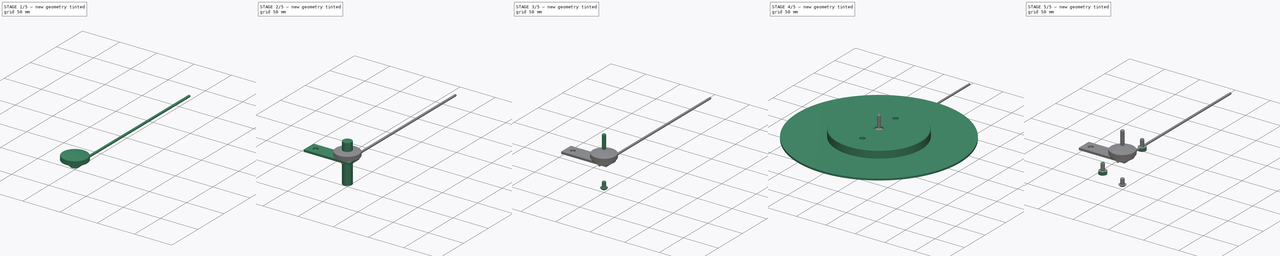
[diagram: build sequence overview — one tinted view per stage of 5, left to right]
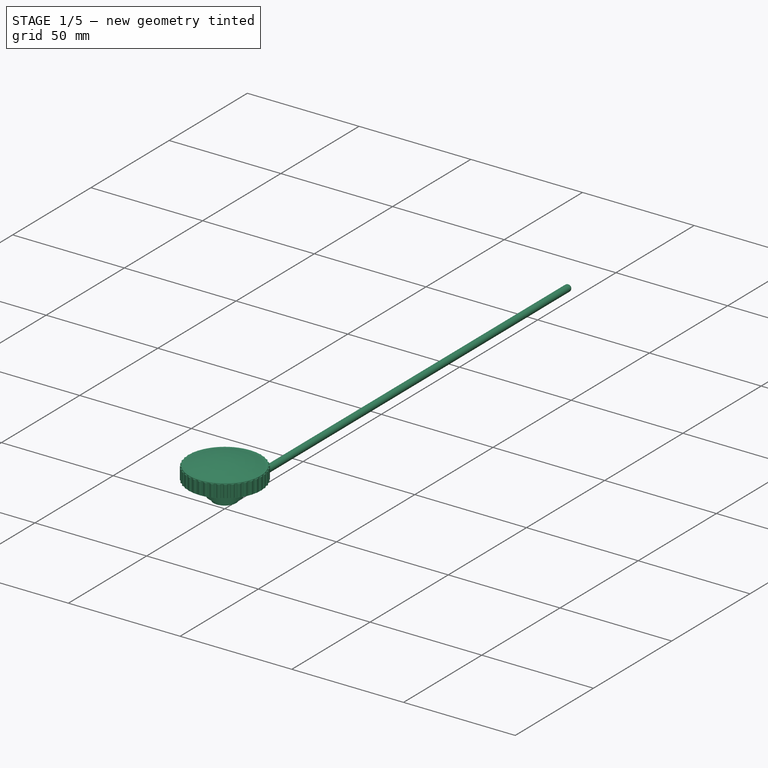
[diagram: stage 1 of 5 — iso view after this stage's code; geometry added in this stage tinted green]
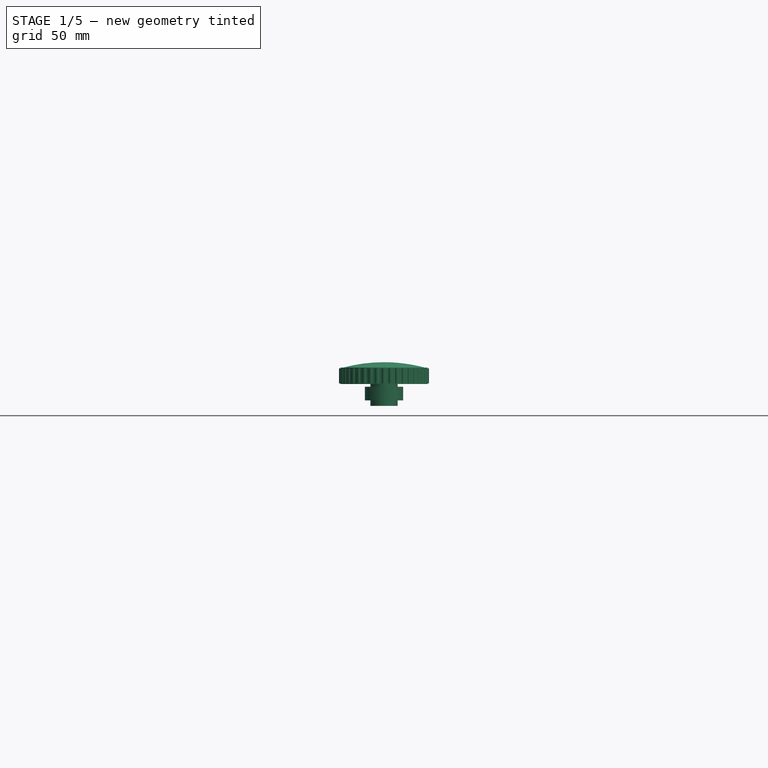
[diagram: stage 1 of 5 — front view after this stage's code; geometry added in this stage tinted green]
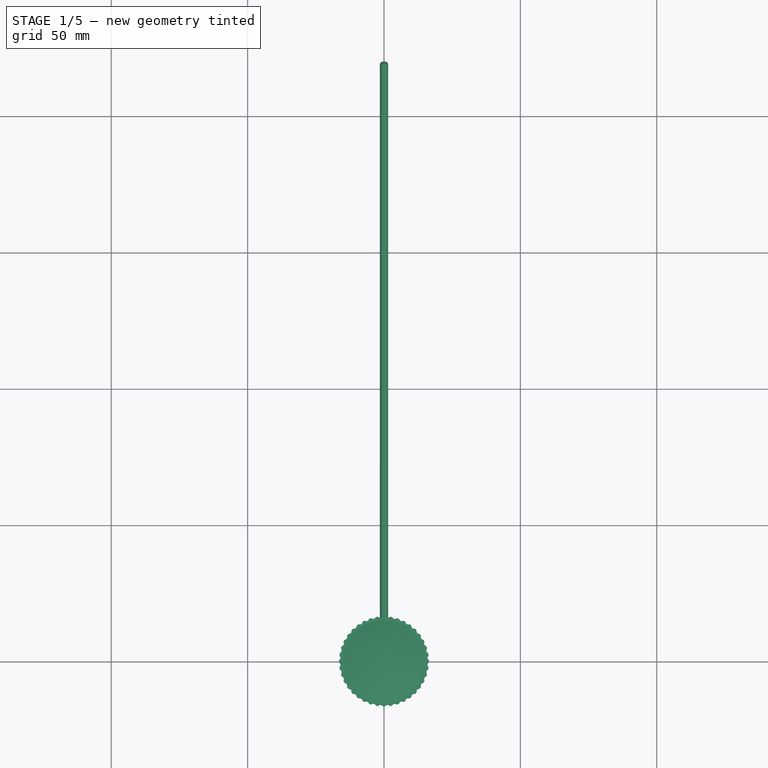
[diagram: stage 1 of 5 — top view after this stage's code; geometry added in this stage tinted green]
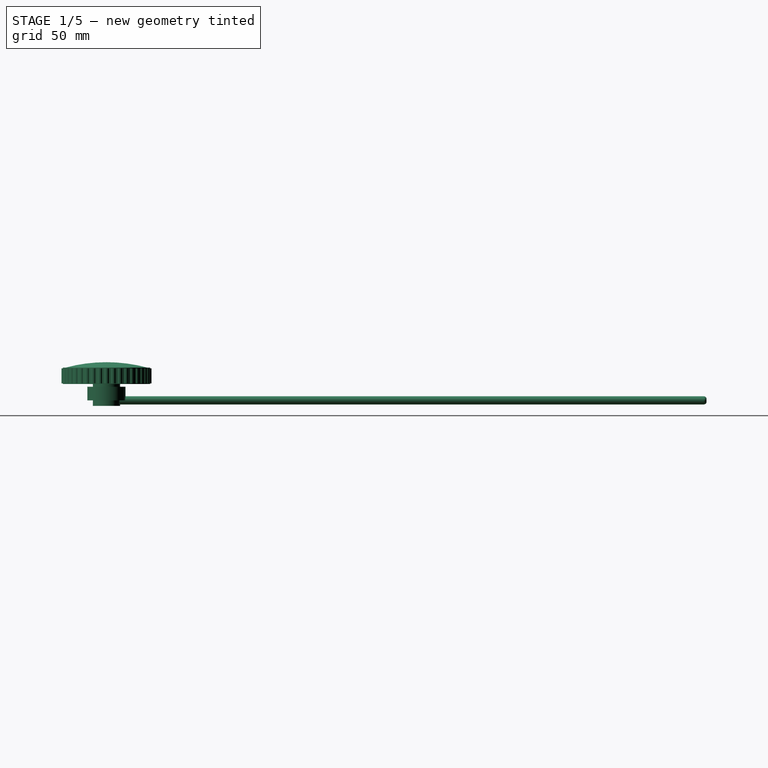
[diagram: stage 1 of 5 — right view after this stage's code; geometry added in this stage tinted green]
FCSTD DOCUMENT  (FreeCAD 0.21R33771 (Git))
Label: FilmLooperv3
License: All rights reserved
objects: Sketcher::SketchObject×15, PartDesign::Body×9, Part::FeaturePython×8, PartDesign::Pad×7, PartDesign::Pocket×4, App::Part×3, PartDesign::AdditiveCylinder×2, PartDesign::Hole×2, PartDesign::Chamfer×1, Part::Revolution×1, PartDesign::Fillet×1, PartDesign::Revolution×1, PartDesign::PolarPattern×1
note: 70 computed .brp shape members not serialized (recipe doc carries the construction recipe); baked Part::Feature solids carry a one-line shape summary decoded from their .brp

FEATURE [PartDesign::Body] Body005  label="RetainingWasher"
  Group = -> [Sketch010,Pad004]
  Origin = -> Origin007
  Placement = pos=(0,0,25.25) rot=(0,0,1;0rad)
  Tip = -> Pad004
FEATURE [Sketcher::SketchObject] Sketch011
  FullyConstrained = true
  MapMode = 5
  sketch-geometry (2):
    g0: Circle CenterX=0 CenterY=0 CenterZ=0 NormalX=0 NormalY=0 NormalZ=1 AngleXU=0 Radius=2.8
    g1: Circle CenterX=0 CenterY=0 CenterZ=0 NormalX=0 NormalY=0 NormalZ=1 AngleXU=0 Radius=7
  constraints (4):
    c: Radius(g0) = 2.8
    c: Coincident(g0,g-1)
    c: Radius(g1) = 7
    c: Coincident(g1,g0)
FEATURE [PartDesign::Pad] Pad005
  Direction = (0,0,1)
  Length = 5
  Length2 = 10
  Profile = -> Sketch011
  ReferenceAxis = -> Sketch011 [N_Axis]
  Type = 0
FEATURE [PartDesign::Body] Body006  label="RadiusArmClamp"
  Group = -> [Sketch011,Pad005,Sketch012,Pocket003]
  Origin = -> Origin008
  Placement = pos=(0,0,28) rot=(0,0,1;0rad)
  Tip = -> Pocket003
FEATURE [Sketcher::SketchObject] Sketch013
  FullyConstrained = true
  MapMode = 5
  Placement = pos=(0,0,0) rot=(1,0,0;1.5708rad)
  sketch-geometry (1):
    g0: Circle CenterX=0 CenterY=0 CenterZ=0 NormalX=0 NormalY=0 NormalZ=1 AngleXU=0 Radius=1.5
  constraints (2):
    c: Radius(g0) = 1.5
    c: Coincident(g0,g-1)
FEATURE [PartDesign::Pad] Pad006
  Direction = (0,-1,2e-16)
  Length = 220
  Length2 = 10
  Placement = pos=(0,0,0) rot=(1,0,0;1.5708rad)
  Profile = -> Sketch013
  ReferenceAxis = -> Sketch013 [N_Axis]
  Reversed = true
  Type = 0
FEATURE [PartDesign::Fillet] Fillet
  Base = -> Pad006 [Edge3,Edge2]
  BaseFeature = -> Pad006
  Placement = pos=(0,0,0) rot=(1,0,0;1.5708rad)
  Radius = 1
  SupportTransform = false
  UseAllEdges = false
FEATURE [PartDesign::Body] Body007  label="RadiusArm"
  Group = -> [Sketch013,Pad006,Fillet]
  Origin = -> Origin009
  Placement = pos=(-4.5,-79,28.75) rot=(0,0,1;0rad)
  Tip = -> Fillet
FEATURE [Sketcher::SketchObject] Sketch014
  FullyConstrained = true
  MapMode = 5
  Placement = pos=(0,0,0) rot=(1,0,0;1.5708rad)
  sketch-geometry (9):
    g0: LineSegment StartX=3.5e-15 StartY=3 StartZ=0 EndX=1.5 EndY=3 EndZ=0
    g1: LineSegment StartX=1.5 StartY=3 StartZ=0 EndX=1.5 EndY=-2 EndZ=0
    g2: LineSegment StartX=1.5 StartY=-2 StartZ=0 EndX=5 EndY=-2 EndZ=0
    g3: LineSegment StartX=5 StartY=-2 StartZ=0 EndX=5 EndY=6 EndZ=0
    g4: LineSegment StartX=5 StartY=6 StartZ=0 EndX=16 EndY=6 EndZ=0
    g5: LineSegment StartX=16 StartY=6 StartZ=0 EndX=16 EndY=12 EndZ=0
    g6: LineSegment StartX=16 StartY=12 StartZ=0 EndX=15 EndY=12 EndZ=0
    g7: ArcOfCircle CenterX=0 CenterY=-43.25 CenterZ=0 NormalX=0 NormalY=0 NormalZ=1 AngleXU=0 Radius=57.25 StartAngle=1.30569 EndAngle=1.5708
    g8: LineSegment StartX=3.5e-15 StartY=14 StartZ=0 EndX=3.5e-15 EndY=3 EndZ=0
  constraints (28):
    c: PointOnObject(g0,g-2)
    c: Coincident(g0,g1)
    c: Vertical(g1)
    c: Coincident(g1,g2)
    c: Horizontal(g2)
    c: Coincident(g2,g3)
    c: Vertical(g3)
    c: Coincident(g3,g4)
    c: Horizontal(g4)
    c: Coincident(g4,g5)
    c: Vertical(g5)
    c: Coincident(g5,g6)
    c: Horizontal(g6)
    c: Coincident(g7,g8)
    c: Coincident(g8,g0)
    c: Vertical(g8)
    c: PointOnObject(g7,g-2)
    c: Coincident(g7,g6)
    c: DistanceX(g2) = 5
    c: DistanceY(g2) = -2
    c: DistanceY(g3,g3) = 8
    c: DistanceX(g4) = 16
    c: DistanceY(g5,g5) = 6
    c: DistanceX(g6,g6) = 1
    c: Horizontal(g0)
    c: DistanceX(g0) = 1.5
    c: DistanceY(g0) = 3
    c: DistanceY(g7) = 14
FEATURE [PartDesign::Revolution] Revolution
  Angle = 360
  Axis = (0,2e-16,1)
  Base = (0,0,0)
  Placement = pos=(0,0,0) rot=(1,0,0;1.5708rad)
  Profile = -> Sketch014
  ReferenceAxis = -> Sketch014 [V_Axis]
  Reversed = true
FEATURE [PartDesign::AdditiveCylinder] Cylinder001
  Angle = 360
  AttacherType = Attacher::AttachEngine3D
  AttachmentOffset = pos=(15.5,0,6.25) rot=(0,0,1;0rad)
  BaseFeature = -> Revolution
  FirstAngle = 0
  Height = 5.5
  MapMode = 5
  Placement = pos=(15.5,0,6.25) rot=(0,0,1;0rad)
  Radius = 1
  SecondAngle = 0
FEATURE [PartDesign::PolarPattern] PolarPattern
  Angle = 360
  Axis = -> Z_Axis010
  BaseFeature = -> Cylinder001
  Occurrences = 40
  Originals = -> [Cylinder001]
  Placement = pos=(15.5,0,6.25) rot=(0,0,1;0rad)
FEATURE [PartDesign::Body] Body008  label="Knob"
  Group = -> [Sketch014,Revolution,Cylinder001,PolarPattern]
  Origin = -> Origin010
  Placement = pos=(0,0,35) rot=(0,0,1;0rad)
  Tip = -> PolarPattern
FEATURE [App::Part] Part001  label="Components"
  Group = -> [Body,Body001,Sketch004,Revolve,Body002,Body003,Body005,Body006,Body007,Body008]
  Origin = -> Origin003
FEATURE [App::Part] Part002  label="FilmLooper"
  Group = -> [Part001,Part]
  Origin = -> Origin011
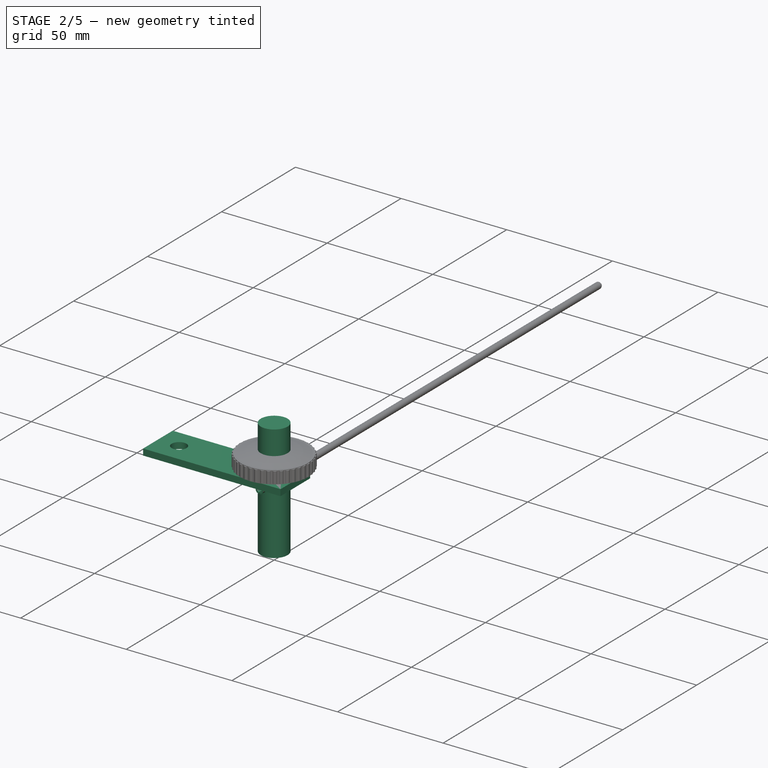
[diagram: stage 2 of 5 — iso view after this stage's code; geometry added in this stage tinted green]
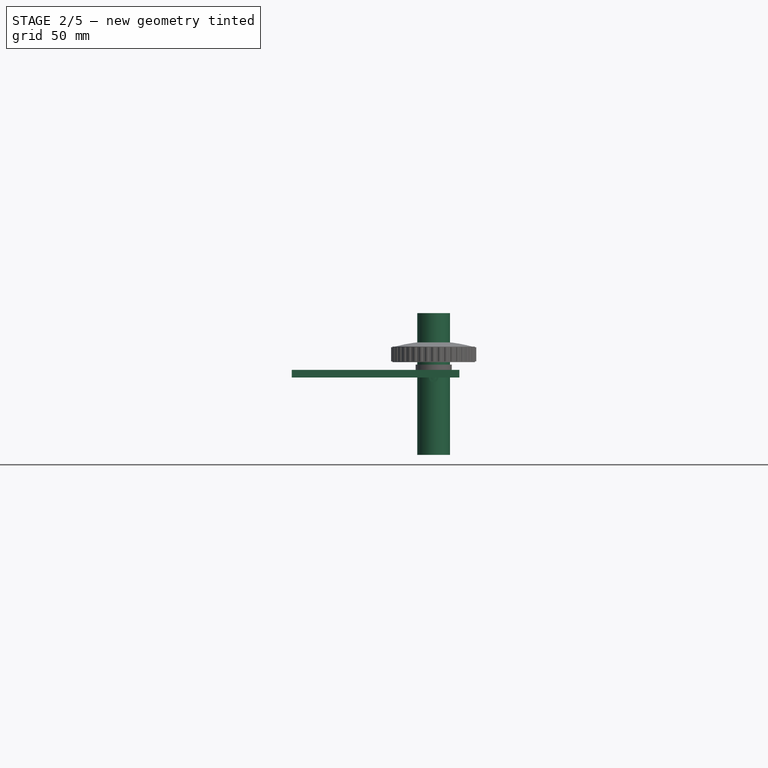
[diagram: stage 2 of 5 — front view after this stage's code; geometry added in this stage tinted green]
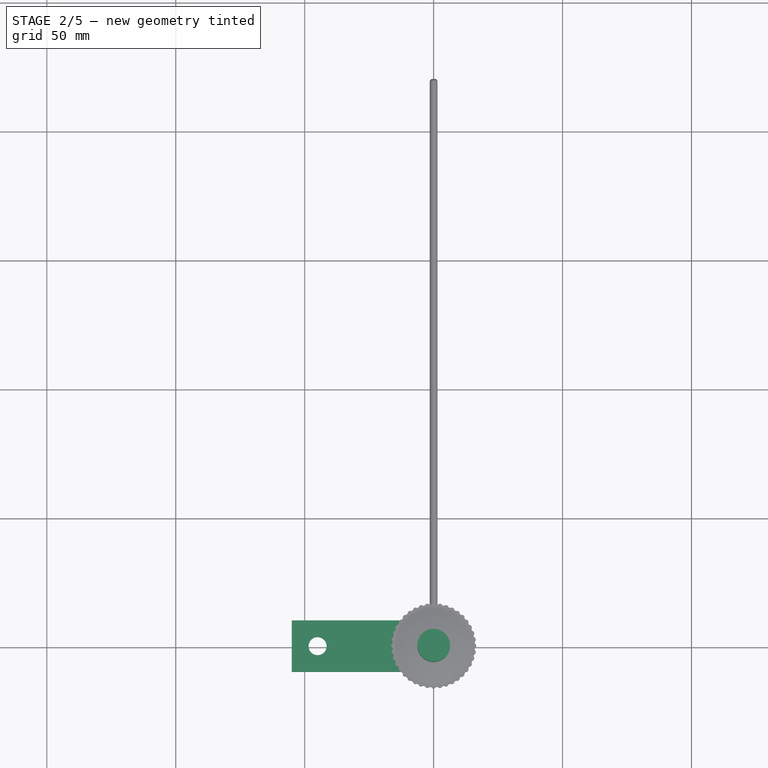
[diagram: stage 2 of 5 — top view after this stage's code; geometry added in this stage tinted green]
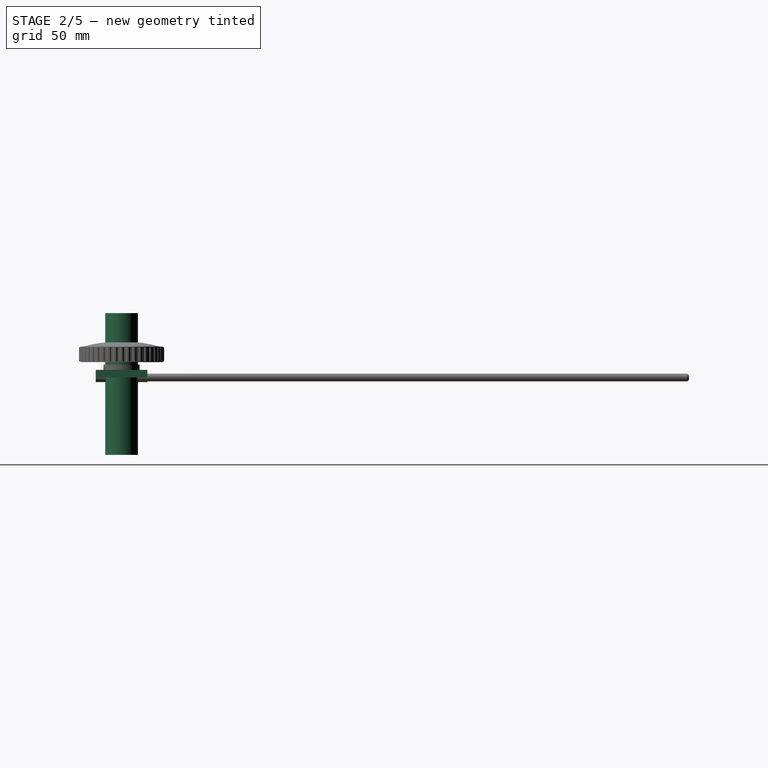
[diagram: stage 2 of 5 — right view after this stage's code; geometry added in this stage tinted green]
FEATURE [PartDesign::AdditiveCylinder] Cylinder
  Angle = 360
  AttacherType = Attacher::AttachEngine3D
  AttachmentOffset = pos=(0,0,-30) rot=(0,0,1;0rad)
  FirstAngle = 0
  Height = 55
  MapMode = 5
  Placement = pos=(0,0,-30) rot=(0,0,1;0rad)
  Radius = 6.35
  SecondAngle = 0
FEATURE [PartDesign::Body] Body002  label="CentreShaft"
  Group = -> [Cylinder,Sketch005,Hole,Sketch006,Hole001,Sketch007,Pocket002]
  Origin = -> Origin004
  Tip = -> Pocket002
FEATURE [Sketcher::SketchObject] Sketch008
  FullyConstrained = true
  MapMode = 5
  sketch-geometry (6):
    g0: LineSegment StartX=-55 StartY=10 StartZ=0 EndX=-55 EndY=-10 EndZ=0
    g1: LineSegment StartX=-55 StartY=-10 StartZ=0 EndX=10 EndY=-10 EndZ=0
    g2: LineSegment StartX=10 StartY=-10 StartZ=0 EndX=10 EndY=10 EndZ=0
    g3: LineSegment StartX=10 StartY=10 StartZ=0 EndX=-55 EndY=10 EndZ=0
    g4: Circle CenterX=0 CenterY=0 CenterZ=0 NormalX=0 NormalY=0 NormalZ=1 AngleXU=0 Radius=3.5
    g5: Circle CenterX=-45 CenterY=0 CenterZ=0 NormalX=0 NormalY=0 NormalZ=1 AngleXU=0 Radius=3.5
  constraints (16):
    c: Coincident(g0,g1)
    c: Coincident(g1,g2)
    c: Coincident(g2,g3)
    c: Coincident(g3,g0)
    c: Vertical(g0)
    c: Horizontal(g1)
    c: Horizontal(g3)
    c: DistanceX(g3,g3) = 65
    c: DistanceY(g2,g2) = 20
    c: Radius(g4) = 3.5
    c: Coincident(g4,g-1)
    c: Radius(g5) = 3.5
    c: PointOnObject(g5,g-1)
    c: DistanceX(g5,g4) = 45
    c: Symmetric(g2,g1,g-1)
    c: DistanceX(g0) = -55
FEATURE [PartDesign::Pad] Pad002
  Direction = (0,0,1)
  Length = 3
  Length2 = 10
  Profile = -> Sketch008
  ReferenceAxis = -> Sketch008 [N_Axis]
  Type = 0
FEATURE [PartDesign::Body] Body003  label="Standoff"
  Group = -> [Sketch008,Pad002]
  Origin = -> Origin005
  Placement = pos=(0,0,-33) rot=(0,0,1;0rad)
  Tip = -> Pad002
FEATURE [Sketcher::SketchObject] Sketch009
  FullyConstrained = true
  MapMode = 5
  Placement = pos=(0,0,0) rot=(1,0,0;1.5708rad)
  sketch-geometry (4):
    g0: ArcOfCircle CenterX=0 CenterY=0 CenterZ=0 NormalX=0 NormalY=0 NormalZ=1 AngleXU=0 Radius=1.8 StartAngle=4.8314 EndAngle=10.8766
    g1: ArcOfCircle CenterX=0 CenterY=0 CenterZ=0 NormalX=0 NormalY=0 NormalZ=1 AngleXU=0 Radius=1.1 StartAngle=4.90791 EndAngle=10.8001
    g2: LineSegment StartX=-0.213708 StartY=-1.07904 StartZ=0 EndX=-0.213708 EndY=-1.78727 EndZ=0
    g3: LineSegment StartX=0.213708 StartY=-1.78727 StartZ=0 EndX=0.213708 EndY=-1.07904 EndZ=0
  constraints (12):
    c: Radius(g0) = 1.8
    c: Coincident(g0,g-1)
    c: Radius(g1) = 1.1
    c: Coincident(g1,g0)
    c: Vertical(g2)
    c: Vertical(g3)
    c: Coincident(g1,g2)
    c: Coincident(g0,g2)
    c: Coincident(g0,g3)
    c: Coincident(g3,g1)
    c: Horizontal(g1,g1)
    c: Equal(g3,g2)
FEATURE [PartDesign::Pad] Pad003
  Direction = (0,-1,2e-16)
  Length = 20
  Length2 = 10
  Midplane = true
  Placement = pos=(0,0,0) rot=(1,0,0;1.5708rad)
  Profile = -> Sketch009
  ReferenceAxis = -> Sketch009 [N_Axis]
  Type = 0
FEATURE [PartDesign::Body] Body004  label="SpringPin"
  Group = -> [Sketch009,Pad003]
  Origin = -> Origin006
  Placement = pos=(0,0,-3.25) rot=(0,0,1;0rad)
  Tip = -> Pad003
FEATURE [App::Part] Part  label="Fasteners"
  Group = -> [Screw,Screw001,Screw002,Screw003,Nut,Nut001,Screw004,ThreadedRod,Body004]
  Origin = -> Origin002
FEATURE [Sketcher::SketchObject] Sketch010
  FullyConstrained = true
  MapMode = 5
  sketch-geometry (2):
    g0: Circle CenterX=0 CenterY=0 CenterZ=0 NormalX=0 NormalY=0 NormalZ=1 AngleXU=0 Radius=2.8
    g1: Circle CenterX=0 CenterY=0 CenterZ=0 NormalX=0 NormalY=0 NormalZ=1 AngleXU=0 Radius=7
  constraints (4):
    c: Radius(g0) = 2.8
    c: Coincident(g0,g-1)
    c: Radius(g1) = 7
    c: Coincident(g1,g0)
FEATURE [PartDesign::Pad] Pad004
  Direction = (0,0,1)
  Length = 2
  Length2 = 10
  Profile = -> Sketch010
  ReferenceAxis = -> Sketch010 [N_Axis]
  Type = 0
FEATURE [Sketcher::SketchObject] Sketch012
  FullyConstrained = false
  MapMode = 5
  Placement = pos=(0,0,0) rot=(1,0,0;1.5708rad)
  sketch-geometry (1):
    g0: Circle CenterX=-4.60305 CenterY=0 CenterZ=0 NormalX=0 NormalY=0 NormalZ=1 AngleXU=0 Radius=1.7
  constraints (2):
    c: Radius(g0) = 1.7
    c: PointOnObject(g0,g-1)
FEATURE [PartDesign::Pocket] Pocket003
  BaseFeature = -> Pad005
  Direction = (0,1,-2e-16)
  Length = 25
  Length2 = 5
  Midplane = true
  Profile = -> Sketch012
  ReferenceAxis = -> Sketch012 [N_Axis]
  Type = 0
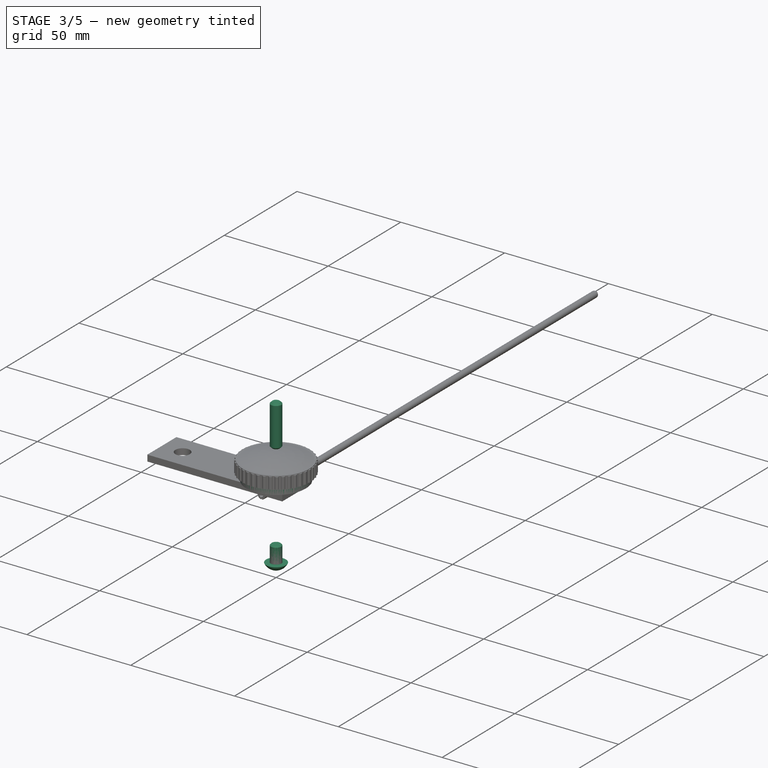
[diagram: stage 3 of 5 — iso view after this stage's code; geometry added in this stage tinted green]
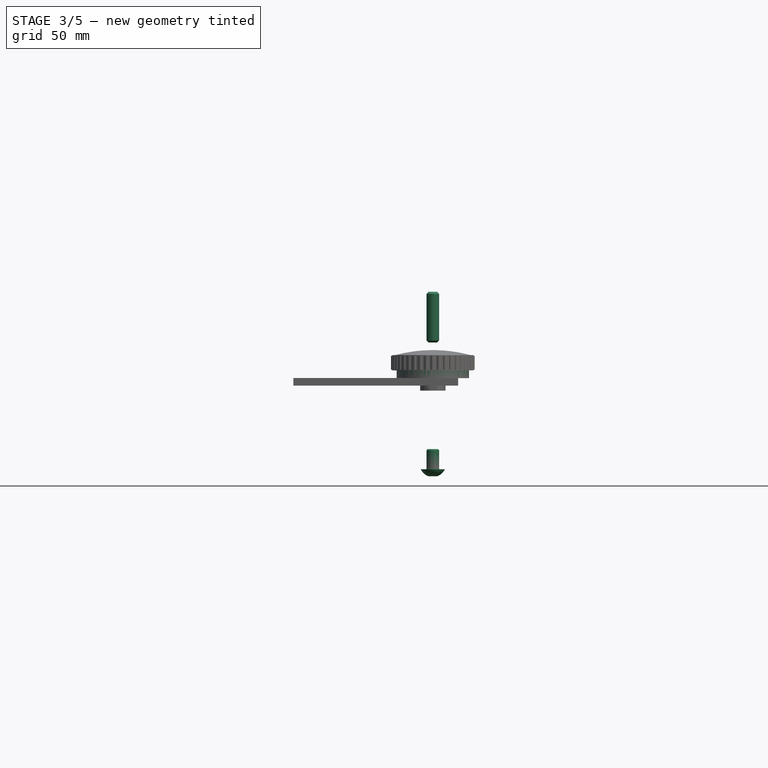
[diagram: stage 3 of 5 — front view after this stage's code; geometry added in this stage tinted green]
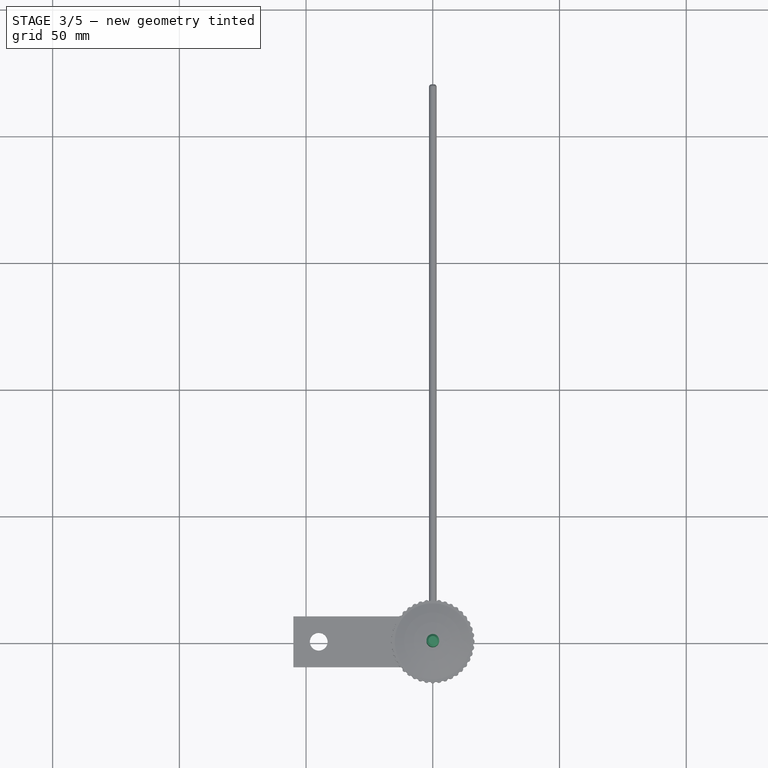
[diagram: stage 3 of 5 — top view after this stage's code; geometry added in this stage tinted green]
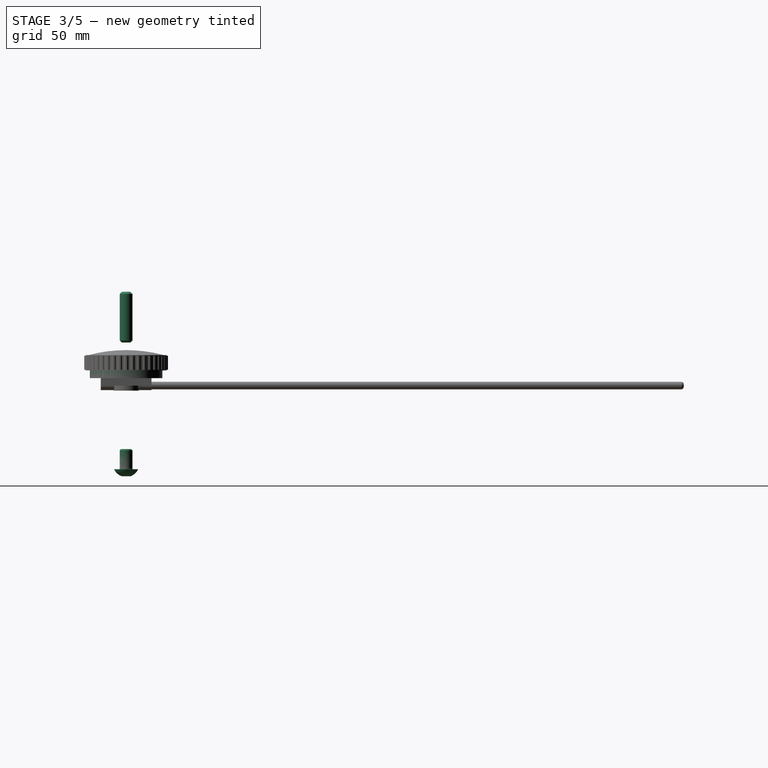
[diagram: stage 3 of 5 — right view after this stage's code; geometry added in this stage tinted green]
FEATURE [Sketcher::SketchObject] Sketch004
  FullyConstrained = true
  Placement = pos=(0,0,0) rot=(1,0,0;1.5708rad)
  sketch-geometry (12):
    g0: LineSegment StartX=-14.2875 StartY=4.03225 StartZ=0 EndX=-14.2875 EndY=-4.03225 EndZ=0
    g1: LineSegment StartX=-14.2875 StartY=-4.03225 StartZ=0 EndX=-11.7875 EndY=-4.03225 EndZ=0
    g2: LineSegment StartX=-11.7875 StartY=-4.03225 StartZ=0 EndX=-11.7875 EndY=-3.23225 EndZ=0
    g3: LineSegment StartX=-11.7875 StartY=-3.23225 StartZ=0 EndX=-8.85 EndY=-3.23225 EndZ=0
    g4: LineSegment StartX=-8.85 StartY=-3.23225 StartZ=0 EndX=-8.85 EndY=-4.03225 EndZ=0
    g5: LineSegment StartX=-8.85 StartY=-4.03225 StartZ=0 EndX=-6.35 EndY=-4.03225 EndZ=0
    g6: LineSegment StartX=-6.35 StartY=-4.03225 StartZ=0 EndX=-6.35 EndY=4.03225 EndZ=0
    g7: LineSegment StartX=-6.35 StartY=4.03225 StartZ=0 EndX=-8.85 EndY=4.03225 EndZ=0
    g8: LineSegment StartX=-8.85 StartY=4.03225 StartZ=0 EndX=-8.85 EndY=3.23225 EndZ=0
    g9: LineSegment StartX=-8.85 StartY=3.23225 StartZ=0 EndX=-11.7875 EndY=3.23225 EndZ=0
    g10: LineSegment StartX=-11.7875 StartY=3.23225 StartZ=0 EndX=-11.7875 EndY=4.03225 EndZ=0
    g11: LineSegment StartX=-11.7875 StartY=4.03225 StartZ=0 EndX=-14.2875 EndY=4.03225 EndZ=0
  constraints (34):
    c: Vertical(g0)
    c: Coincident(g0,g1)
    c: Horizontal(g1)
    c: Coincident(g1,g2)
    c: Coincident(g2,g3)
    c: Horizontal(g3)
    c: Coincident(g3,g4)
    c: Coincident(g4,g5)
    c: Horizontal(g5)
    c: Coincident(g5,g6)
    c: Coincident(g6,g7)
    c: Horizontal(g7)
    c: Coincident(g7,g8)
    c: Coincident(g8,g9)
    c: Horizontal(g9)
    c: Coincident(g9,g10)
    c: Coincident(g10,g11)
    c: Coincident(g11,g0)
    c: Horizontal(g11)
    c: Horizontal(g4,g1)
    c: Symmetric(g5,g6,g-1)
    c: Horizontal(g0,g7)
    c: Vertical(g4)
    c: Vertical(g8)
    c: Symmetric(g3,g8,g-1)
    c: Vertical(g10)
    c: Vertical(g2)
    c: Equal(g11,g7)
    c: DistanceX(g6,g-1) = 6.35
    c: DistanceX(g0,g-1) = 14.2875
    c: Equal(g1,g5)
    c: DistanceX(g7,g7) = 2.5
    c: DistanceY(g8,g8) = 0.8
    c: DistanceY(g6,g6) = 8.0645
FEATURE [Part::Revolution] Revolve  label="R8RS Bearing"
  Angle = 360
  Axis = (0,0,1)
  Base = (0,0,0)
  FaceMakerClass = Part::FaceMakerBullseye
  Placement = pos=(0,0,7) rot=(0,0,1;0rad)
  Solid = true
  Source = -> Sketch004
  Symmetric = false
FEATURE [Sketcher::SketchObject] Sketch005
  FullyConstrained = false
  MapMode = 5
  Placement = pos=(0,0,-30) rot=(1,0,0;3.14159rad)
  sketch-geometry (1):
    g0: Circle CenterX=0 CenterY=0 CenterZ=0 NormalX=0 NormalY=0 NormalZ=1 AngleXU=0 Radius=2.9367
  constraints (1):
    c: Coincident(g0,g-1)
FEATURE [PartDesign::Hole] Hole
  BaseFeature = -> Cylinder
  CustomThreadClearance = 0
  Depth = 15
  DepthType = 0
  Diameter = 4.2
  DrillForDepth = false
  DrillPoint = 1
  DrillPointAngle = 118
  HoleCutCountersinkAngle = 90
  HoleCutCustomValues = false
  HoleCutDepth = 0
  HoleCutDiameter = 6.1
  HoleCutType = 0
  ModelThread = false
  Placement = pos=(0,0,-30) rot=(0,0,1;0rad)
  Profile = -> Sketch005
  Tapered = false
  TaperedAngle = 90
  ThreadClass = 0
  ThreadDepth = 15
  ThreadDepthType = 0
  ThreadDirection = 0
  ThreadFit = 0
  ThreadSize = 13
  ThreadType = 1
  Threaded = true
  UseCustomThreadClearance = false
FEATURE [Sketcher::SketchObject] Sketch006
  FullyConstrained = false
  MapMode = 5
  Placement = pos=(0,0,25) rot=(0,0,1;0rad)
  sketch-geometry (1):
    g0: Circle CenterX=0 CenterY=0 CenterZ=0 NormalX=0 NormalY=0 NormalZ=1 AngleXU=0 Radius=5.23811
  constraints (1):
    c: Coincident(g0,g-1)
FEATURE [PartDesign::Hole] Hole001
  BaseFeature = -> Hole
  CustomThreadClearance = 0
  Depth = 15
  DepthType = 0
  Diameter = 5.5
  DrillForDepth = false
  DrillPoint = 1
  DrillPointAngle = 118
  HoleCutCountersinkAngle = 90
  HoleCutCustomValues = false
  HoleCutDepth = 0
  HoleCutDiameter = 6.1
  HoleCutType = 0
  ModelThread = false
  Placement = pos=(0,0,-30) rot=(0,0,1;0rad)
  Profile = -> Sketch006
  Tapered = false
  TaperedAngle = 90
  ThreadClass = 0
  ThreadDepth = 15
  ThreadDepthType = 0
  ThreadDirection = 0
  ThreadFit = 0
  ThreadSize = 13
  ThreadType = 1
  Threaded = false
  UseCustomThreadClearance = false
FEATURE [Part::FeaturePython] Screw004  label="M5x8-Screw"  # Fasteners workbench fastener (typed FeaturePython)
  Placement = pos=(0,0,-33) rot=(1,0,0;3.14159rad)
  baseObject = -> Body002 [Edge4]
  diameter = 3
  invert = false
  leftHanded = false
  length = 0
  lengthCustom = 8
  matchOuter = false
  offset = 3
  thread = false
  type = 54
FEATURE [Part::FeaturePython] ThreadedRod  label="M5x20-ThreadedRod"  # Fasteners workbench fastener (typed FeaturePython)
  Placement = pos=(0,0,17) rot=(1,0,0;3.14159rad)
  baseObject = -> Body002 [Edge5]
  diameter = 7
  diameterCustom = 6
  invert = true
  leftHanded = false
  length = 20
  matchOuter = false
  offset = 8
  pitchCustom = 1
  thread = false
  type = 4
FEATURE [Sketcher::SketchObject] Sketch007
  FullyConstrained = false
  MapMode = 5
  Placement = pos=(0,0,0) rot=(1,0,0;1.5708rad)
  sketch-geometry (1):
    g0: Circle CenterX=0 CenterY=-3.28881 CenterZ=0 NormalX=0 NormalY=0 NormalZ=1 AngleXU=0 Radius=1.8
  constraints (2):
    c: Radius(g0) = 1.8
    c: PointOnObject(g0,g-2)
FEATURE [PartDesign::Pocket] Pocket002
  BaseFeature = -> Hole001
  Direction = (0,1,-2e-16)
  Length = 25
  Length2 = 5
  Midplane = true
  Placement = pos=(0,0,-30) rot=(0,0,1;0rad)
  Profile = -> Sketch007
  ReferenceAxis = -> Sketch007 [N_Axis]
  Type = 0
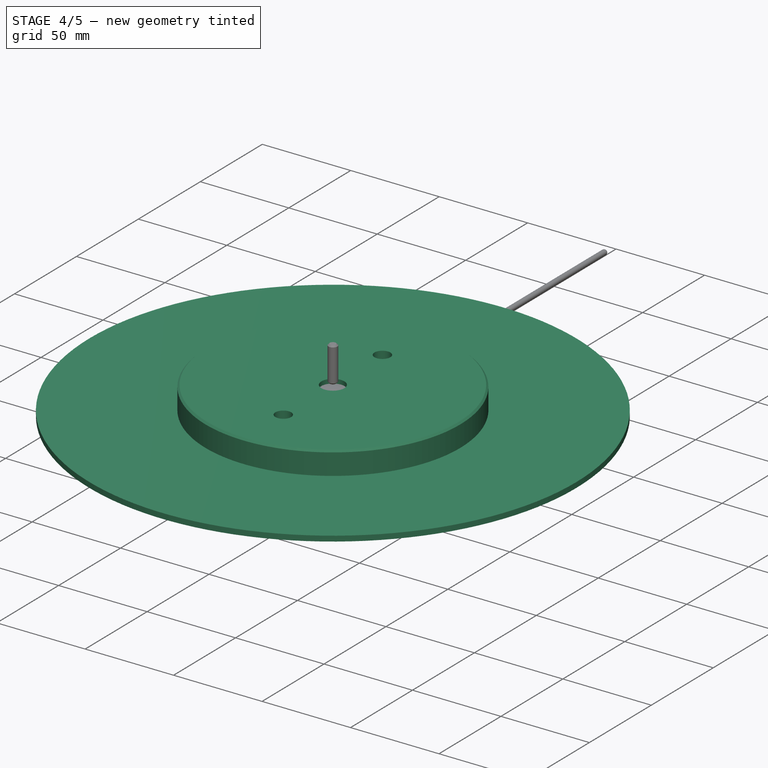
[diagram: stage 4 of 5 — iso view after this stage's code; geometry added in this stage tinted green]
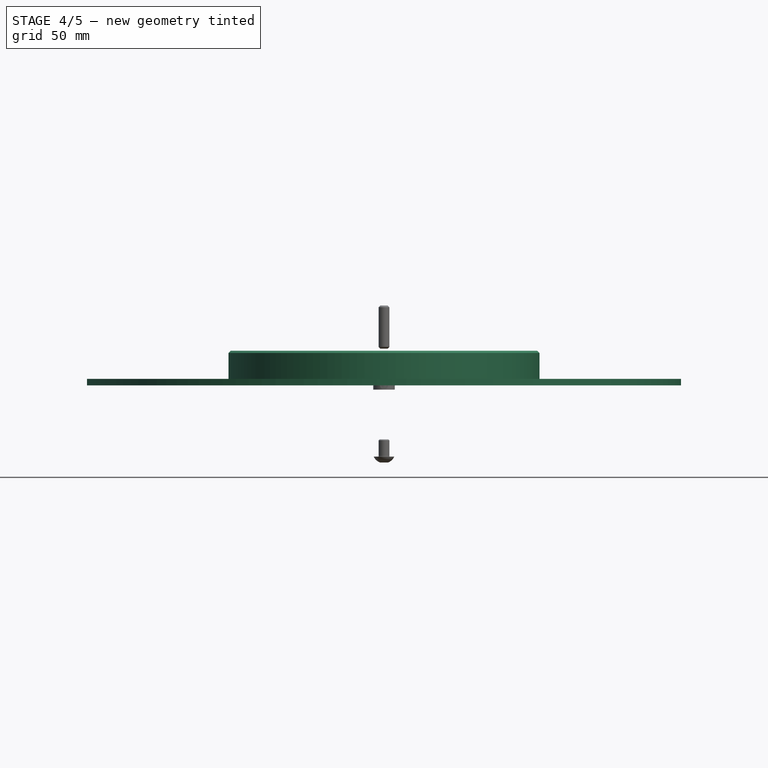
[diagram: stage 4 of 5 — front view after this stage's code; geometry added in this stage tinted green]
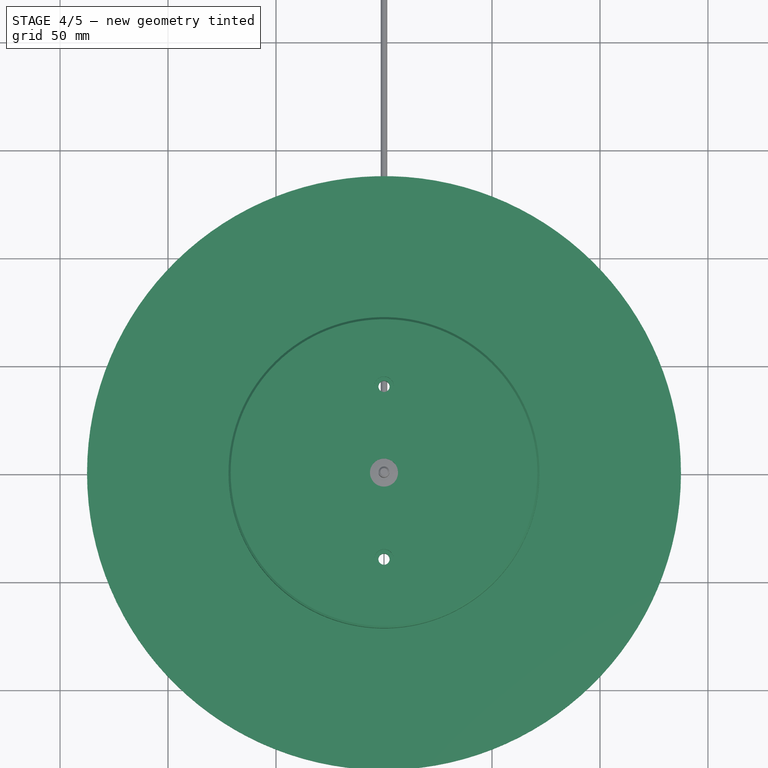
[diagram: stage 4 of 5 — top view after this stage's code; geometry added in this stage tinted green]
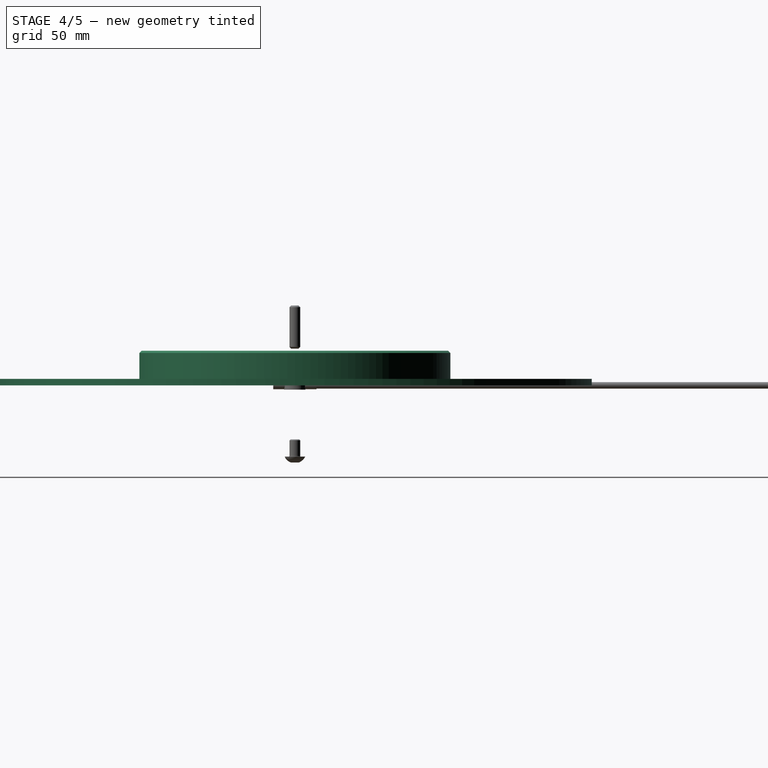
[diagram: stage 4 of 5 — right view after this stage's code; geometry added in this stage tinted green]
FEATURE [Sketcher::SketchObject] Sketch
  FullyConstrained = true
  MapMode = 5
  sketch-geometry (6):
    g0: Circle CenterX=0 CenterY=0 CenterZ=0 NormalX=0 NormalY=0 NormalZ=1 AngleXU=0 Radius=137.5
    g1: Circle CenterX=0 CenterY=0 CenterZ=0 NormalX=0 NormalY=0 NormalZ=1 AngleXU=0 Radius=11.1125
    g2: Circle CenterX=0 CenterY=40 CenterZ=0 NormalX=0 NormalY=0 NormalZ=1 AngleXU=0 Radius=2.6
    g3: Circle CenterX=0 CenterY=-40 CenterZ=0 NormalX=0 NormalY=0 NormalZ=1 AngleXU=0 Radius=2.6
    g4: Circle CenterX=-57.5 CenterY=0 CenterZ=0 NormalX=0 NormalY=0 NormalZ=1 AngleXU=0 Radius=2.6
    g5: Circle CenterX=57.5 CenterY=0 CenterZ=0 NormalX=0 NormalY=0 NormalZ=1 AngleXU=0 Radius=2.6
  constraints (14):
    c: Radius(g0) = 137.5
    c: Coincident(g0,g-1)
    c: Radius(g1) = 11.1125
    c: Coincident(g1,g0)
    c: Radius(g2) = 2.6
    c: PointOnObject(g2,g-2)
    c: Equal(g3,g2)
    c: Symmetric(g3,g2,g0)
    c: DistanceY(g3,g2) = 80
    c: PointOnObject(g4,g-1)
    c: Equal(g4,g5)
    c: Equal(g5,g2)
    c: Symmetric(g5,g4,g0)
    c: DistanceX(g4,g5) = 115
FEATURE [PartDesign::Pad] Pad
  Direction = (0,0,1)
  Length = 3
  Length2 = 10
  Profile = -> Sketch
  ReferenceAxis = -> Sketch [N_Axis]
  Type = 0
FEATURE [PartDesign::Body] Body  label="Platter"
  Group = -> [Sketch,Pad]
  Origin = -> Origin
  Tip = -> Pad
FEATURE [Sketcher::SketchObject] Sketch001
  AttachmentOffset = pos=(0,0,3) rot=(0,0,1;0rad)
  FullyConstrained = true
  MapMode = 5
  Placement = pos=(0,0,3) rot=(0,0,1;0rad)
  sketch-geometry (4):
    g0: Circle CenterX=0 CenterY=0 CenterZ=0 NormalX=0 NormalY=0 NormalZ=1 AngleXU=0 Radius=72
    g1: Circle CenterX=0 CenterY=0 CenterZ=0 NormalX=0 NormalY=0 NormalZ=1 AngleXU=0 Radius=6.5
    g2: Circle CenterX=0 CenterY=40 CenterZ=0 NormalX=0 NormalY=0 NormalZ=1 AngleXU=0 Radius=2.6
    g3: Circle CenterX=0 CenterY=-40 CenterZ=0 NormalX=0 NormalY=0 NormalZ=1 AngleXU=0 Radius=2.6
  constraints (9):
    c: Radius(g0) = 72
    c: Coincident(g0,g-1)
    c: Radius(g1) = 6.5
    c: Coincident(g1,g0)
    c: Radius(g2) = 2.6
    c: PointOnObject(g2,g-2)
    c: Radius(g3) = 2.6
    c: Symmetric(g3,g2,g0)
    c: DistanceY(g3,g2) = 80
FEATURE [PartDesign::Pad] Pad001
  Direction = (0,0,1)
  Length = 13
  Length2 = 10
  Profile = -> Sketch001
  ReferenceAxis = -> Sketch001 [N_Axis]
  Type = 0
FEATURE [Sketcher::SketchObject] Sketch002
  AttachmentOffset = pos=(0,0,3) rot=(0,0,1;0rad)
  FullyConstrained = true
  MapMode = 5
  Placement = pos=(0,0,3) rot=(0,0,1;0rad)
  sketch-geometry (3):
    g0: Circle CenterX=0 CenterY=0 CenterZ=0 NormalX=0 NormalY=0 NormalZ=1 AngleXU=0 Radius=14.27
    g1: Circle CenterX=-57.5 CenterY=0 CenterZ=0 NormalX=0 NormalY=0 NormalZ=1 AngleXU=0 Radius=2.6
    g2: Circle CenterX=57.5 CenterY=0 CenterZ=0 NormalX=0 NormalY=0 NormalZ=1 AngleXU=0 Radius=2.6
  constraints (7):
    c: Radius(g0) = 14.27
    c: Coincident(g0,g-1)
    c: Radius(g1) = 2.6
    c: PointOnObject(g1,g-1)
    c: Radius(g2) = 2.6
    c: Symmetric(g1,g2,g0)
    c: DistanceX(g1,g2) = 115
FEATURE [PartDesign::Pocket] Pocket
  BaseFeature = -> Pad001
  Direction = (0,0,-1)
  Length = 8.0645
  Length2 = 5
  Profile = -> Sketch002
  ReferenceAxis = -> Sketch002 [N_Axis]
  Reversed = true
  Type = 0
FEATURE [PartDesign::Chamfer] Chamfer
  Angle = 45
  Base = -> Pocket [Edge3]
  BaseFeature = -> Pocket
  ChamferType = 0
  FlipDirection = false
  Size = 1
  Size2 = 1
  SupportTransform = false
  UseAllEdges = false
FEATURE [Sketcher::SketchObject] Sketch003
  ExternalGeometry = -> [Chamfer]
  FullyConstrained = true
  MapMode = 5
  Placement = pos=(0,0,16) rot=(0,0,1;0rad)
  sketch-geometry (2):
    g0: Circle CenterX=0 CenterY=40 CenterZ=0 NormalX=0 NormalY=0 NormalZ=1 AngleXU=0 Radius=4.5
    g1: Circle CenterX=0 CenterY=-40 CenterZ=0 NormalX=0 NormalY=0 NormalZ=1 AngleXU=0 Radius=4.5
  constraints (4):
    c: Radius(g0) = 4.5
    c: Coincident(g0,g-3)
    c: Radius(g1) = 4.5
    c: Coincident(g1,g-4)
FEATURE [PartDesign::Pocket] Pocket001
  BaseFeature = -> Chamfer
  Direction = (0,0,-1)
  Length = 5
  Length2 = 5
  Profile = -> Sketch003
  ReferenceAxis = -> Sketch003 [N_Axis]
  Type = 0
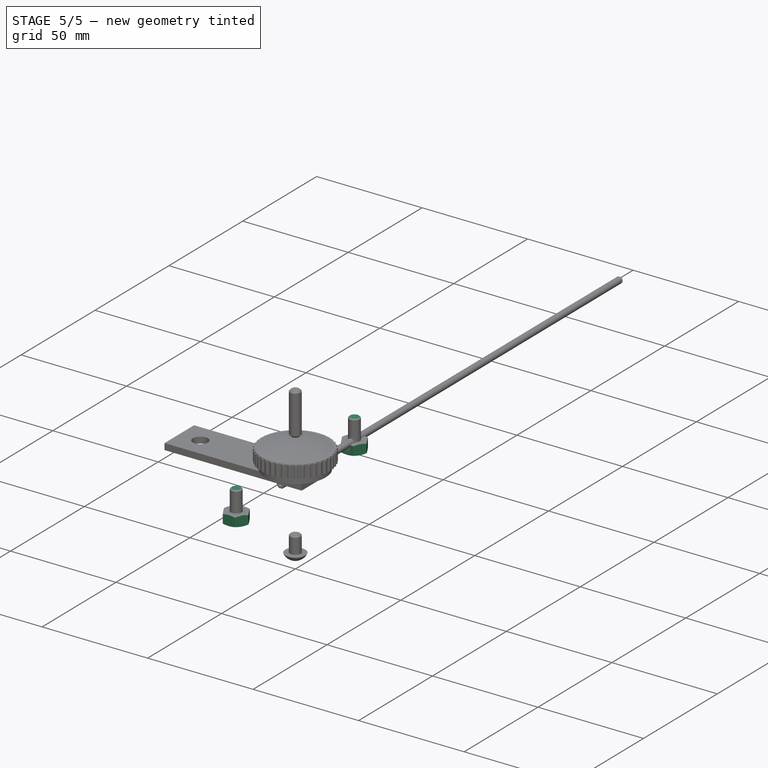
[diagram: stage 5 of 5 — iso view after this stage's code; geometry added in this stage tinted green]
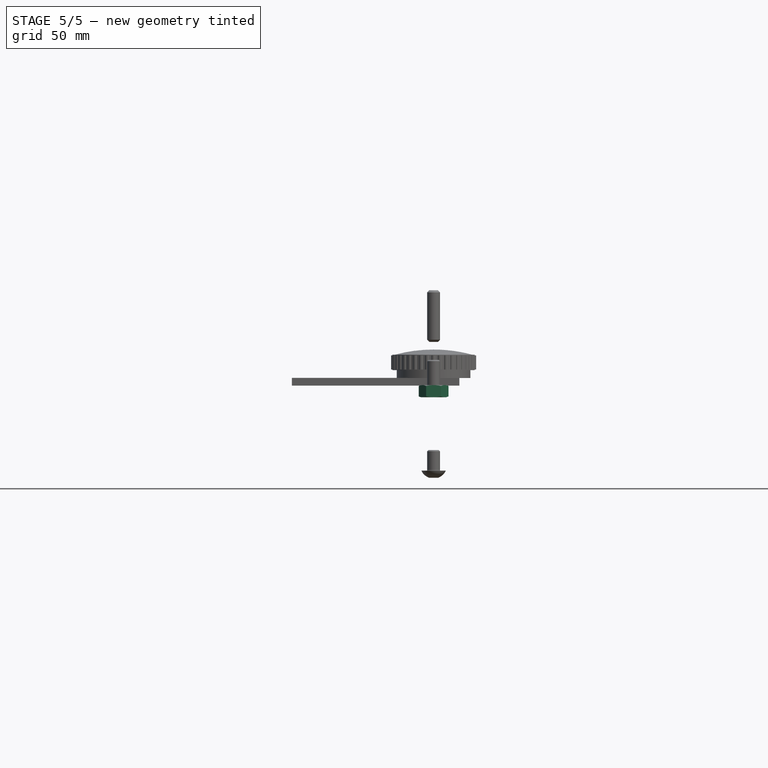
[diagram: stage 5 of 5 — front view after this stage's code; geometry added in this stage tinted green]
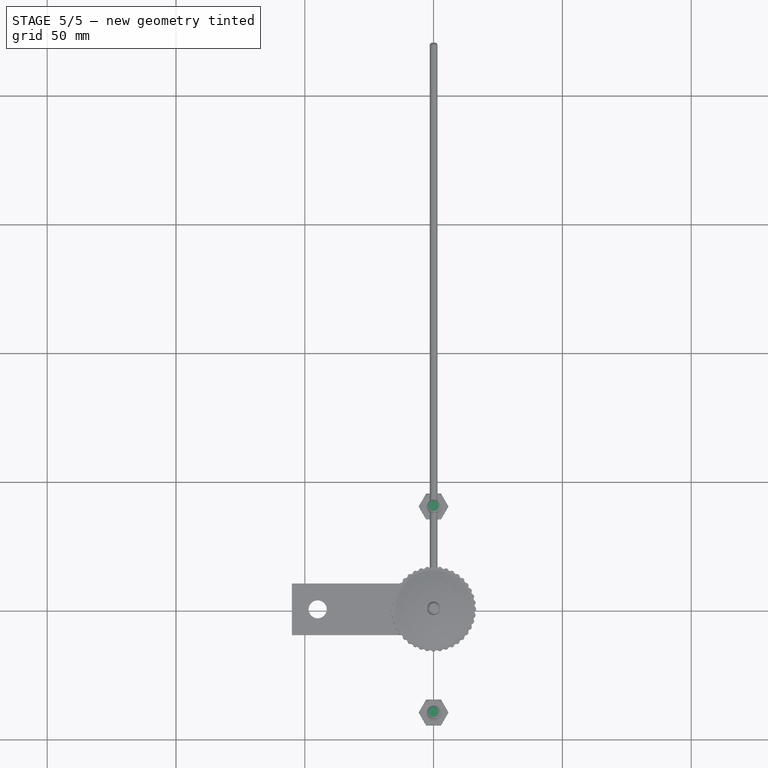
[diagram: stage 5 of 5 — top view after this stage's code; geometry added in this stage tinted green]
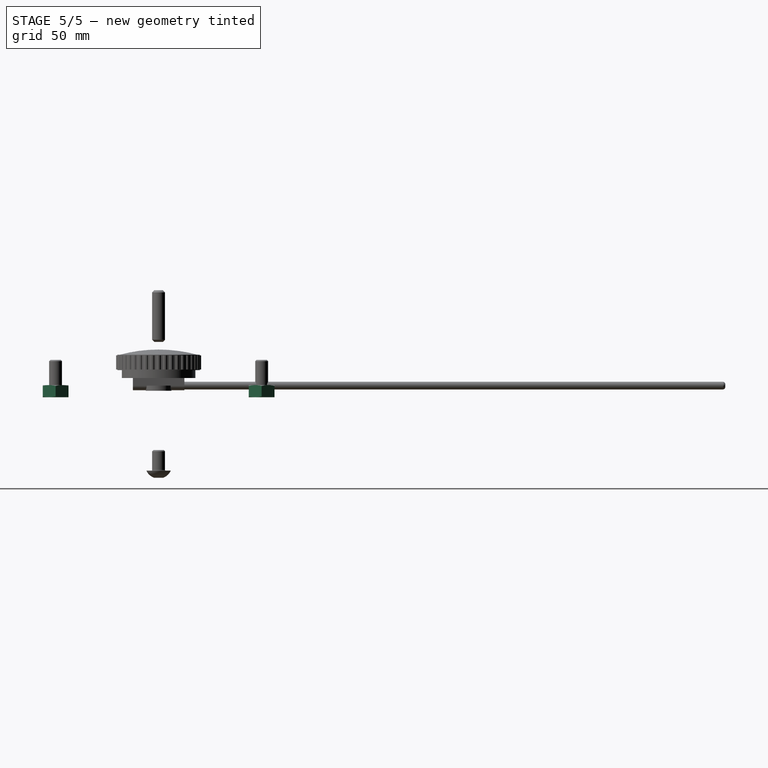
[diagram: stage 5 of 5 — right view after this stage's code; geometry added in this stage tinted green]
FEATURE [Part::FeaturePython] Screw  label="M5x10-Screw"  # Fasteners workbench fastener (typed FeaturePython)
  Placement = pos=(0,-40,0) rot=(1,0,0;3.14159rad)
  baseObject = -> Body [Edge14]
  diameter = 3
  invert = true
  leftHanded = false
  length = 1
  lengthCustom = 10
  matchOuter = false
  offset = 0
  thread = false
  type = 54
FEATURE [Part::FeaturePython] Screw001  label="M5x10-Screw001"  # Fasteners workbench fastener (typed FeaturePython)
  Placement = pos=(0,40,0) rot=(1,0,0;3.14159rad)
  baseObject = -> Body [Edge17]
  diameter = 3
  invert = true
  leftHanded = false
  length = 1
  lengthCustom = 10
  matchOuter = false
  offset = 0
  thread = false
  type = 54
FEATURE [PartDesign::Body] Body001  label="CentreDisk"
  Group = -> [Sketch001,Pad001,Sketch002,Pocket,Chamfer,Sketch003,Pocket001]
  Origin = -> Origin001
  Tip = -> Pocket001
FEATURE [Part::FeaturePython] Screw002  label="M5x20-Screw"  # Fasteners workbench fastener (typed FeaturePython)
  Placement = pos=(0,-40,11) rot=(0,0,1;0rad)
  baseObject = -> Body001 [Edge15]
  diameter = 6
  invert = true
  leftHanded = false
  length = 5
  lengthCustom = 20
  matchOuter = false
  offset = 0
  thread = false
  type = 48
FEATURE [Part::FeaturePython] Screw003  label="M5x20-Screw001"  # Fasteners workbench fastener (typed FeaturePython)
  Placement = pos=(0,40,11) rot=(0,0,1;0rad)
  baseObject = -> Body001 [Edge23]
  diameter = 6
  invert = true
  leftHanded = false
  length = 5
  lengthCustom = 20
  matchOuter = false
  offset = 0
  thread = false
  type = 48
FEATURE [Part::FeaturePython] Nut  label="M6-Nut"  # Fasteners workbench fastener (typed FeaturePython)
  Placement = pos=(0,-40,-4.5) rot=(0,0,1;0rad)
  baseObject = -> Screw002 [Edge33]
  diameter = 8
  invert = false
  leftHanded = false
  matchOuter = false
  offset = 4
  thread = false
  type = 25
FEATURE [Part::FeaturePython] Nut001  label="M6-Nut001"  # Fasteners workbench fastener (typed FeaturePython)
  Placement = pos=(0,40,-4.5) rot=(0,0,1;0rad)
  baseObject = -> Screw003 [Edge33]
  diameter = 8
  invert = false
  leftHanded = false
  matchOuter = false
  offset = 4
  thread = false
  type = 25
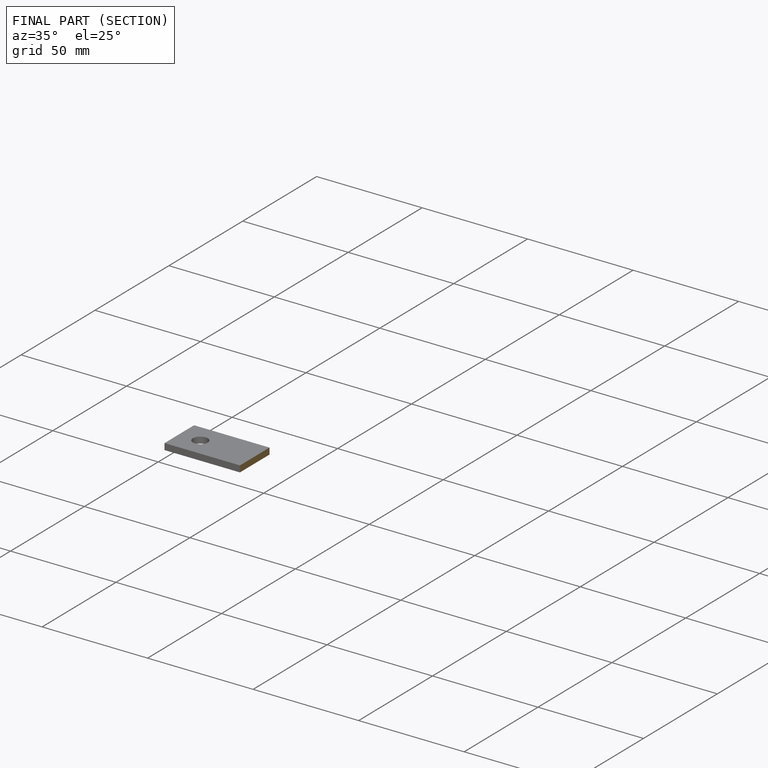
[diagram: finished part — half-section view (interior)]
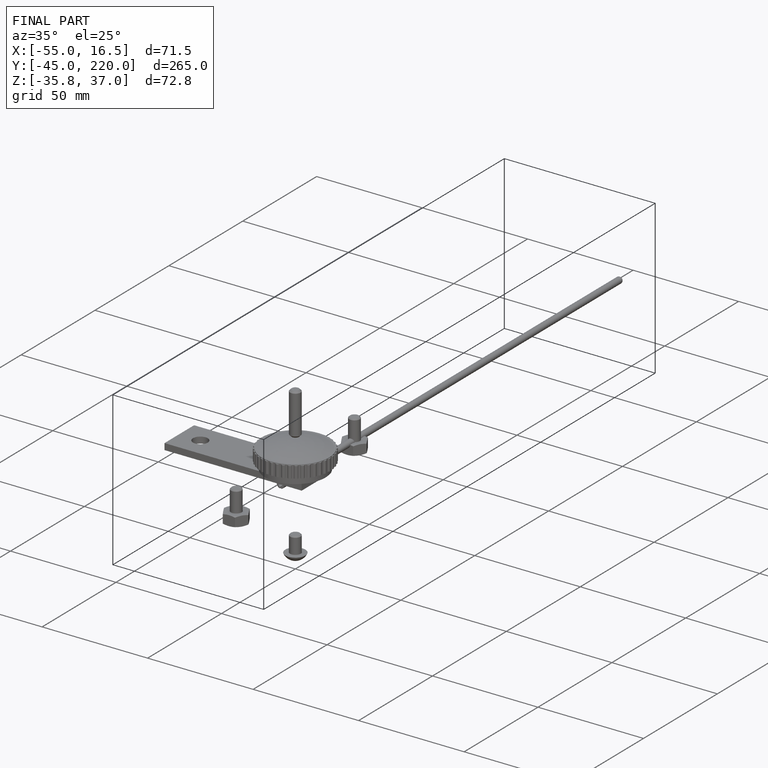
[diagram: finished part — iso view with bounding-box wireframe]
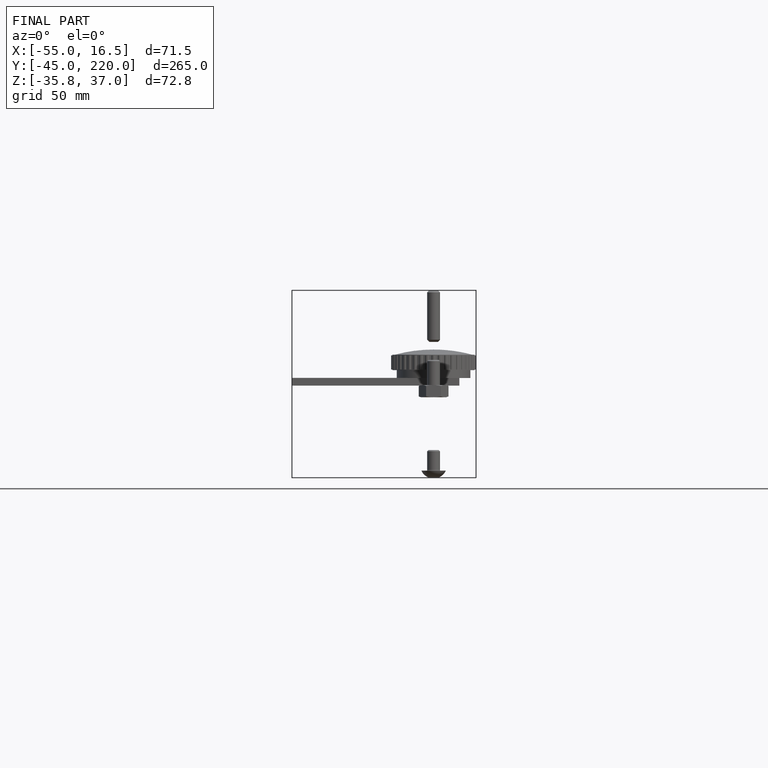
[diagram: finished part — front view with bounding-box wireframe]
